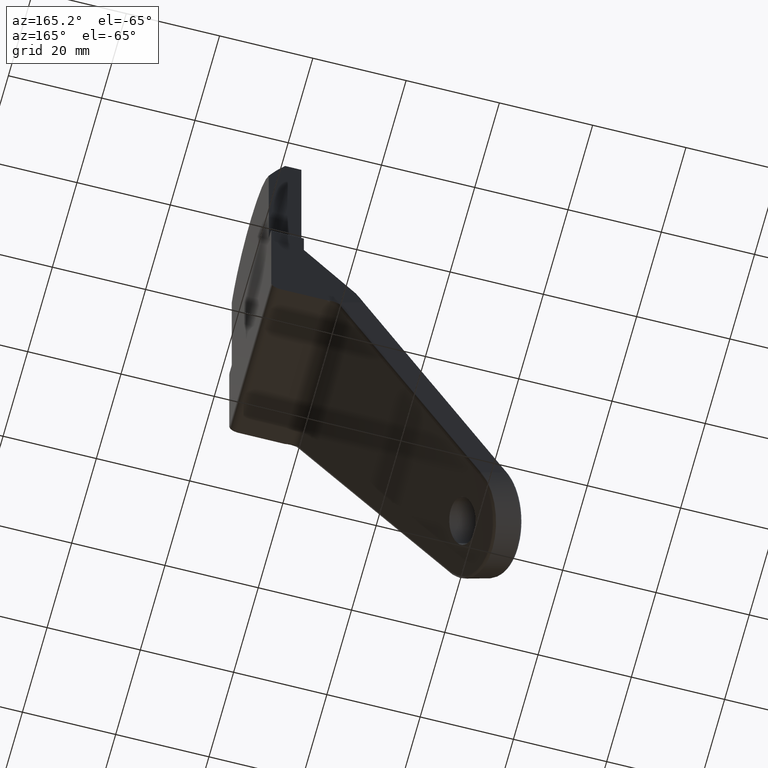
[diagram: clean part render]
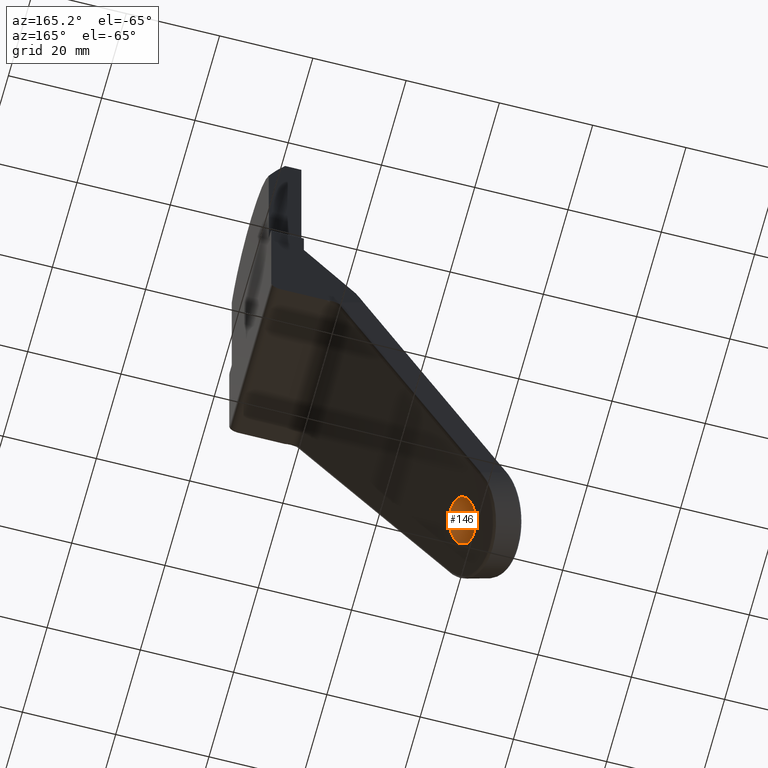
[diagram: same view with one face highlighted and labeled with its STEP entity id]
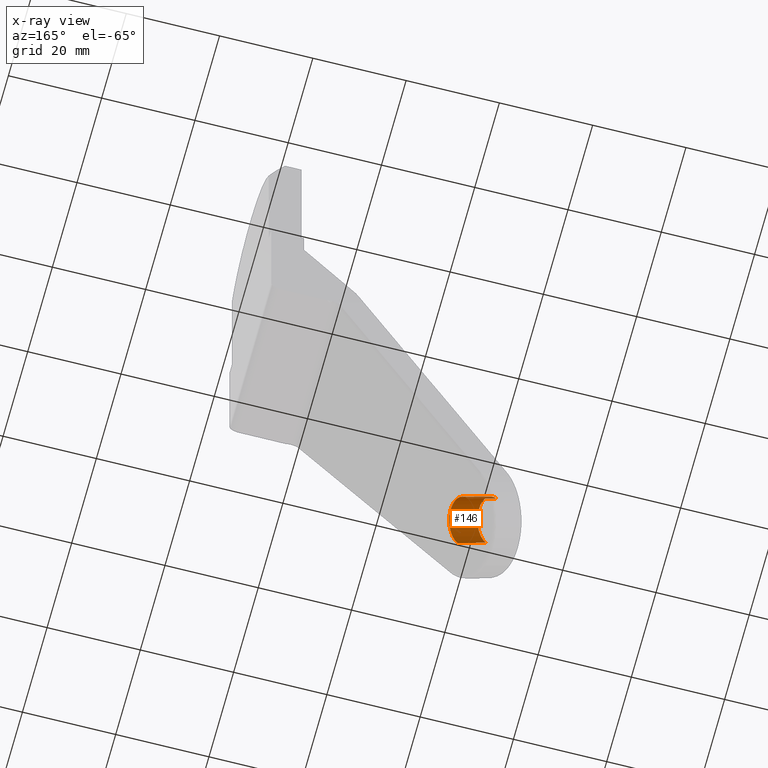
[diagram: x-ray of the same camera — body ghosted, the highlighted face saturated]
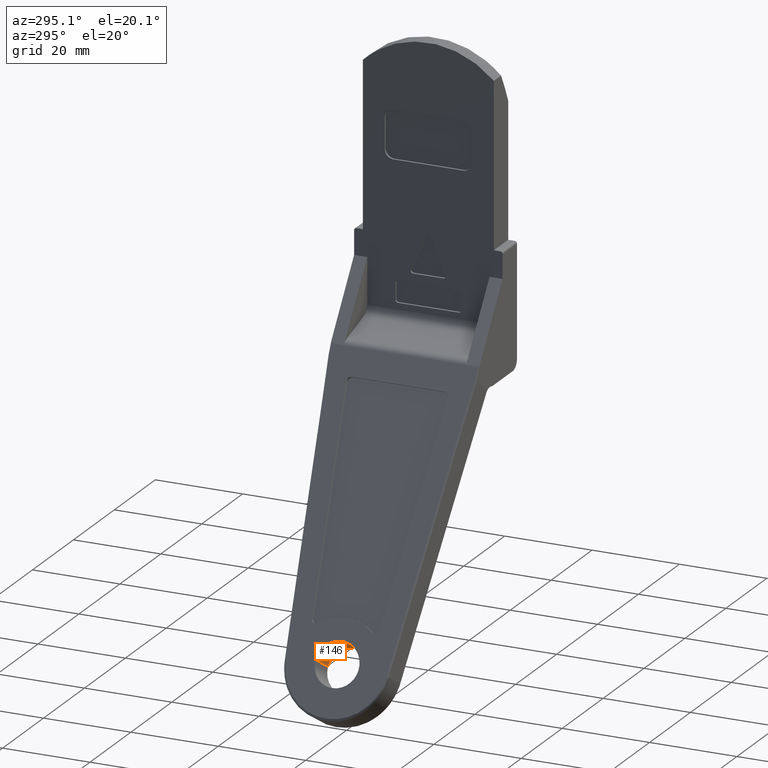
[diagram: same view with one face highlighted and labeled with its STEP entity id]
A machine part, auxiliary view. The second image highlights one B-rep face of the part: STEP entity #146.
The next image is the same camera in x-ray: the body ghosted, the highlighted face saturated — about 0% of this face is hidden behind the body in this view.
A second angle (auxiliary view) of the same face is appended — the face is thin or edge-on in the first view.
In plain terms, the highlighted face is a freeform B-spline surface patch.
Its self-contained STEP definition (entity closure, byte-faithful):
#44=CARTESIAN_POINT('',(-38.643531140966886,-4.965047631831278,-105.158203666959820));
#45=CARTESIAN_POINT('',(-38.572482375919940,-4.981938077255975,-105.035143596083400));
#46=CARTESIAN_POINT('',(-38.501066903162169,-4.990673992122280,-104.911448368820400));
#47=CARTESIAN_POINT('',(-36.005729907108353,-5.295916689796560,-100.589397909646890));
#48=CARTESIAN_POINT('',(-35.853108558271273,-0.305242697687228,-100.325049979141200));
#49=CARTESIAN_POINT('',(-35.700487209434172,4.685431294422106,-100.060702048635580));
#50=CARTESIAN_POINT('',(-38.195824205488002,4.990673992096387,-104.382752507809100));
#51=CARTESIAN_POINT('',(-45.012606719925074,-4.965047631831278,-101.481016166960900));
#52=CARTESIAN_POINT('',(-44.941557954878142,-4.981938077255975,-101.357956096084490));
#53=CARTESIAN_POINT('',(-44.870142482120357,-4.990673992122280,-101.234260868821490));
#54=CARTESIAN_POINT('',(-42.374805486066556,-5.295916689796560,-96.912210409647969));
#55=CARTESIAN_POINT('',(-42.222184137229462,-0.305242697687228,-96.647862479142333));
#56=CARTESIAN_POINT('',(-42.069562788392375,4.685431294422106,-96.383514548636668));
#57=CARTESIAN_POINT('',(-44.564899784446190,4.990673992096387,-100.705565007810190));
#65=(BOUNDED_SURFACE()B_SPLINE_SURFACE(2,1,((#44,#51),(#45,#52),(#46,#53),(#47,#54),(#48,#55),(#49,#56),(#50,#57)),.UNSPECIFIED.,.F.,.F.,.U.)B_SPLINE_SURFACE_WITH_KNOTS((3,2,2,3),(2,2),(0.0,0.331370849898476,8.615642097360375,16.899913344822270),(0.0,7.354375000000347),.UNSPECIFIED.)GEOMETRIC_REPRESENTATION_ITEM()RATIONAL_B_SPLINE_SURFACE(((0.977505800795127,0.977505800795127),(0.988284271247462,0.988284271247462),(1.0,1.0),(0.707106781186548,0.707106781186548),(1.0,1.0),(0.707106781186548,0.707106781186548),(1.0,1.0)))REPRESENTATION_ITEM('')SURFACE());
#66=CARTESIAN_POINT('',(-38.795085586760869,-4.965047631799990,-105.070703667187900));
#67=VERTEX_POINT('',#66);
#68=CARTESIAN_POINT('',(-35.999999999988411,-1.294609E-011,-100.229473419392310));
#69=VERTEX_POINT('',#68);
#70=CARTESIAN_POINT('',(-38.795085586760869,-4.965047631799990,-105.070703667187890));
#71=CARTESIAN_POINT('',(-38.648060299250290,-5.000000000012946,-104.816048399222010));
#72=CARTESIAN_POINT('',(-38.499999999987551,-5.000000000012946,-104.559600438315000));
#73=CARTESIAN_POINT('',(-35.999999999988418,-5.000000000012946,-100.229473419392310));
#74=CARTESIAN_POINT('',(-35.999999999988411,-1.294609E-011,-100.229473419392310));
#82=(BOUNDED_CURVE()B_SPLINE_CURVE(2,(#70,#71,#72,#73,#74),.UNSPECIFIED.,.F.,.U.)B_SPLINE_CURVE_WITH_KNOTS((3,2,3),(0.729562473497725,0.750000000000000,1.0),.UNSPECIFIED.)CURVE()GEOMETRIC_REPRESENTATION_ITEM()RATIONAL_B_SPLINE_CURVE((0.956026754152763,0.976055948312653,1.0,0.707106781186548,1.0))REPRESENTATION_ITEM(''));
#83=EDGE_CURVE('',#67,#69,#82,.T.);
#84=ORIENTED_EDGE('',*,*,#83,.F.);
#85=CARTESIAN_POINT('',(-44.857263413252909,-4.965047631799985,-101.570703667188990));
#86=VERTEX_POINT('',#85);
#87=CARTESIAN_POINT('',(-38.795085586760869,-4.965047631799990,-105.070703667187900));
#88=CARTESIAN_POINT('',(-44.857263413252909,-4.965047631799985,-101.570703667188990));
#89=QUASI_UNIFORM_CURVE('',1,(#87,#88),.UNSPECIFIED.,.F.,.U.);
#90=EDGE_CURVE('',#67,#86,#89,.T.);
#91=ORIENTED_EDGE('',*,*,#90,.T.);
#92=CARTESIAN_POINT('',(-42.062177826480401,-1.294609E-011,-96.729473419393315));
#93=VERTEX_POINT('',#92);
#94=CARTESIAN_POINT('',(-44.857263413252909,-4.965047631799985,-101.570703667188970));
#95=CARTESIAN_POINT('',(-44.710238125742300,-5.000000000012946,-101.316048399223060));
#96=CARTESIAN_POINT('',(-44.562177826479548,-5.000000000012946,-101.059600438316000));
#97=CARTESIAN_POINT('',(-42.062177826480401,-5.000000000012946,-96.729473419393329));
#98=CARTESIAN_POINT('',(-42.062177826480401,-1.294609E-011,-96.729473419393315));
#106=(BOUNDED_CURVE()B_SPLINE_CURVE(2,(#94,#95,#96,#97,#98),.UNSPECIFIED.,.F.,.U.)B_SPLINE_CURVE_WITH_KNOTS((3,2,3),(0.729562473497722,0.750000000000000,1.0),.UNSPECIFIED.)CURVE()GEOMETRIC_REPRESENTATION_ITEM()RATIONAL_B_SPLINE_CURVE((0.956026754152758,0.976055948312650,1.0,0.707106781186548,1.0))REPRESENTATION_ITEM(''));
#107=EDGE_CURVE('',#86,#93,#106,.T.);
#108=ORIENTED_EDGE('',*,*,#107,.T.);
#109=CARTESIAN_POINT('',(-44.409556686017098,4.990674017585839,-100.795252868725800));
#110=VERTEX_POINT('',#109);
#111=CARTESIAN_POINT('',(-42.062177826480401,-1.294609E-011,-96.729473419393315));
#112=CARTESIAN_POINT('',(-42.062177826480401,4.703531121526118,-96.729473419393315));
#113=CARTESIAN_POINT('',(-44.409556686017098,4.990674017585839,-100.795252868725840));
#121=(BOUNDED_CURVE()B_SPLINE_CURVE(2,(#111,#112,#113),.UNSPECIFIED.,.F.,.U.)B_SPLINE_CURVE_WITH_KNOTS((3,3),(0.0,0.239332991059229),.UNSPECIFIED.)CURVE()GEOMETRIC_REPRESENTATION_ITEM()RATIONAL_B_SPLINE_CURVE((1.0,0.719603959521645,0.976072103434084))REPRESENTATION_ITEM(''));
#122=EDGE_CURVE('',#93,#110,#121,.T.);
#123=ORIENTED_EDGE('',*,*,#122,.T.);
#124=CARTESIAN_POINT('',(-38.347378862056367,4.990674017895477,-104.295252873109110));
#125=VERTEX_POINT('',#124);
#126=CARTESIAN_POINT('',(-38.347378862056367,4.990674017895477,-104.295252873109110));
#127=CARTESIAN_POINT('',(-44.409556686017098,4.990674017585839,-100.795252868725800));
#128=QUASI_UNIFORM_CURVE('',1,(#126,#127),.UNSPECIFIED.,.F.,.U.);
#129=EDGE_CURVE('',#125,#110,#128,.T.);
#130=ORIENTED_EDGE('',*,*,#129,.F.);
#131=CARTESIAN_POINT('',(-35.999999999988411,-1.294609E-011,-100.229473419392310));
#132=CARTESIAN_POINT('',(-35.999999999988418,4.703531131086498,-100.229473419392310));
#133=CARTESIAN_POINT('',(-38.347378862056374,4.990674017895477,-104.295252873109060));
#141=(BOUNDED_CURVE()B_SPLINE_CURVE(2,(#131,#132,#133),.UNSPECIFIED.,.F.,.U.)B_SPLINE_CURVE_WITH_KNOTS((3,3),(0.0,0.239332991409292),.UNSPECIFIED.)CURVE()GEOMETRIC_REPRESENTATION_ITEM()RATIONAL_B_SPLINE_CURVE((1.0,0.719603959111520,0.976072104184337))REPRESENTATION_ITEM(''));
#142=EDGE_CURVE('',#69,#125,#141,.T.);
#143=ORIENTED_EDGE('',*,*,#142,.F.);
#144=EDGE_LOOP('',(#84,#91,#108,#123,#130,#143));
#145=FACE_OUTER_BOUND('',#144,.T.);
#146=ADVANCED_FACE('',(#145),#65,.F.);